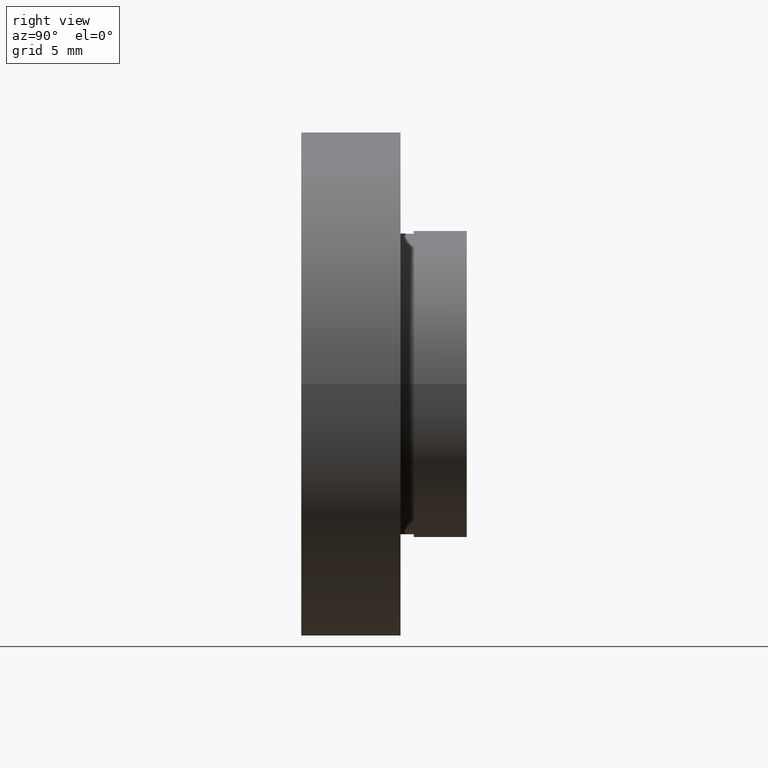
[diagram: clean part render]
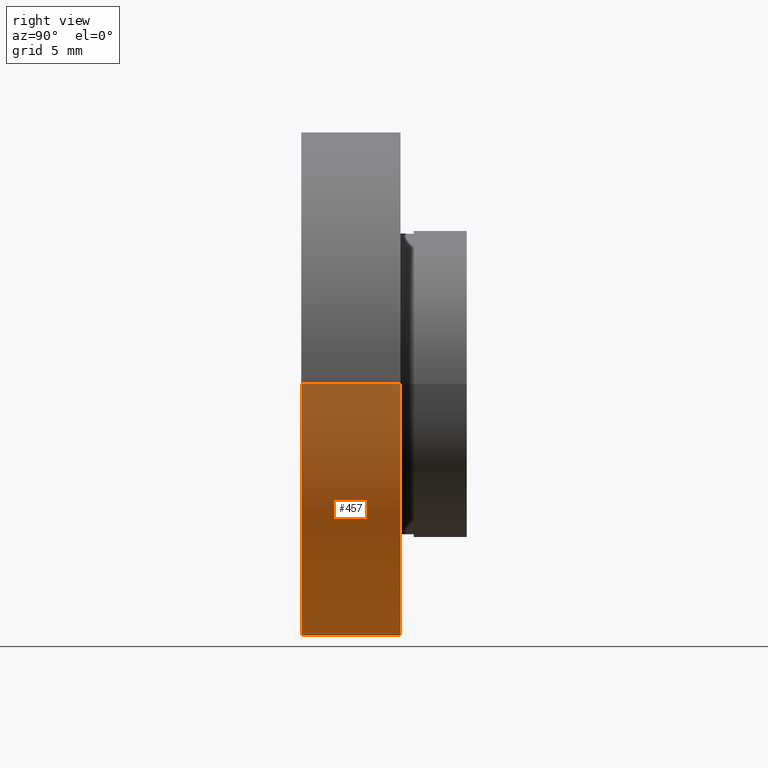
[diagram: same view with one face highlighted and labeled with its STEP entity id]
A machine part, right view. The second image highlights one B-rep face of the part: STEP entity #457.
In plain terms, the highlighted cylindrical surface (partial cylindrical patch) has radius 19.05 mm, axis along (-0, 1, -0).
Its self-contained STEP definition (entity closure, byte-faithful):
#8 = CARTESIAN_POINT ( 'NONE',  ( 1.149455719078122700E-015, 7.499999999999998200, 0.0000000000000000000 ) ) ;
#10 = DIRECTION ( 'NONE',  ( -1.224646799147351000E-016, 1.000000000000000000, -0.0000000000000000000 ) ) ;
#12 = VERTEX_POINT ( 'NONE', #388 ) ;
#16 = AXIS2_PLACEMENT_3D ( 'NONE', #207, #398, #163 ) ;
#45 = VERTEX_POINT ( 'NONE', #256 ) ;
#82 = ORIENTED_EDGE ( 'NONE', *, *, #199, .F. ) ;
#163 = DIRECTION ( 'NONE',  ( -1.000000000000000000, -1.224646799147351000E-016, 0.0000000000000000000 ) ) ;
#177 = DIRECTION ( 'NONE',  ( -1.224646799147351000E-016, 1.000000000000000000, -0.0000000000000000000 ) ) ;
#189 = VECTOR ( 'NONE', #490, 1000.000000000000000 ) ;
#190 = CIRCLE ( 'NONE', #417, 19.05000000000000100 ) ;
#199 = EDGE_CURVE ( 'NONE', #45, #12, #190, .T. ) ;
#205 = ORIENTED_EDGE ( 'NONE', *, *, #372, .T. ) ;
#207 = CARTESIAN_POINT ( 'NONE',  ( 2.067940818438636500E-015, -3.469446951953614200E-015, 0.0000000000000000000 ) ) ;
#256 = CARTESIAN_POINT ( 'NONE',  ( 19.05000000000000100, 7.500000000000000900, 2.332952152375707600E-015 ) ) ;
#257 = CARTESIAN_POINT ( 'NONE',  ( -19.04999999999999400, -5.802399104329317500E-015, 0.0000000000000000000 ) ) ;
#258 = CYLINDRICAL_SURFACE ( 'NONE', #472, 19.04999999999999700 ) ;
#292 = ORIENTED_EDGE ( 'NONE', *, *, #566, .T. ) ;
#372 = EDGE_CURVE ( 'NONE', #621, #12, #525, .T. ) ;
#388 = CARTESIAN_POINT ( 'NONE',  ( -19.05000000000000100, 7.499999999999995600, 0.0000000000000000000 ) ) ;
#398 = DIRECTION ( 'NONE',  ( -1.224646799147351000E-016, 1.000000000000000000, -0.0000000000000000000 ) ) ;
#399 = CIRCLE ( 'NONE', #16, 19.04999999999999700 ) ;
#413 = ORIENTED_EDGE ( 'NONE', *, *, #551, .F. ) ;
#415 = VERTEX_POINT ( 'NONE', #549 ) ;
#417 = AXIS2_PLACEMENT_3D ( 'NONE', #8, #10, #547 ) ;
#450 = LINE ( 'NONE', #542, #541 ) ;
#452 = CARTESIAN_POINT ( 'NONE',  ( 0.0000000000000000000, 16.88601823708207700, 0.0000000000000000000 ) ) ;
#457 = ADVANCED_FACE ( 'NONE', ( #611 ), #258, .T. ) ;
#472 = AXIS2_PLACEMENT_3D ( 'NONE', #452, #177, #604 ) ;
#490 = DIRECTION ( 'NONE',  ( -1.224646799147351000E-016, 1.000000000000000000, -0.0000000000000000000 ) ) ;
#503 = CARTESIAN_POINT ( 'NONE',  ( -19.04999999999999700, 16.88601823708207300, 0.0000000000000000000 ) ) ;
#525 = LINE ( 'NONE', #503, #189 ) ;
#536 = EDGE_LOOP ( 'NONE', ( #413, #292, #205, #82 ) ) ;
#540 = DIRECTION ( 'NONE',  ( -1.224646799147351000E-016, 1.000000000000000000, -0.0000000000000000000 ) ) ;
#541 = VECTOR ( 'NONE', #540, 1000.000000000000000 ) ;
#542 = CARTESIAN_POINT ( 'NONE',  ( 19.04999999999999700, 16.88601823708208000, 2.332952152375707300E-015 ) ) ;
#547 = DIRECTION ( 'NONE',  ( -1.000000000000000000, -1.365923996832131600E-016, 0.0000000000000000000 ) ) ;
#549 = CARTESIAN_POINT ( 'NONE',  ( 19.05000000000000100, -1.136494799577911100E-015, 2.332952152375707600E-015 ) ) ;
#551 = EDGE_CURVE ( 'NONE', #415, #45, #450, .T. ) ;
#566 = EDGE_CURVE ( 'NONE', #415, #621, #399, .T. ) ;
#604 = DIRECTION ( 'NONE',  ( -1.000000000000000000, -1.821231995776175700E-016, 0.0000000000000000000 ) ) ;
#611 = FACE_OUTER_BOUND ( 'NONE', #536, .T. ) ;
#621 = VERTEX_POINT ( 'NONE', #257 ) ;